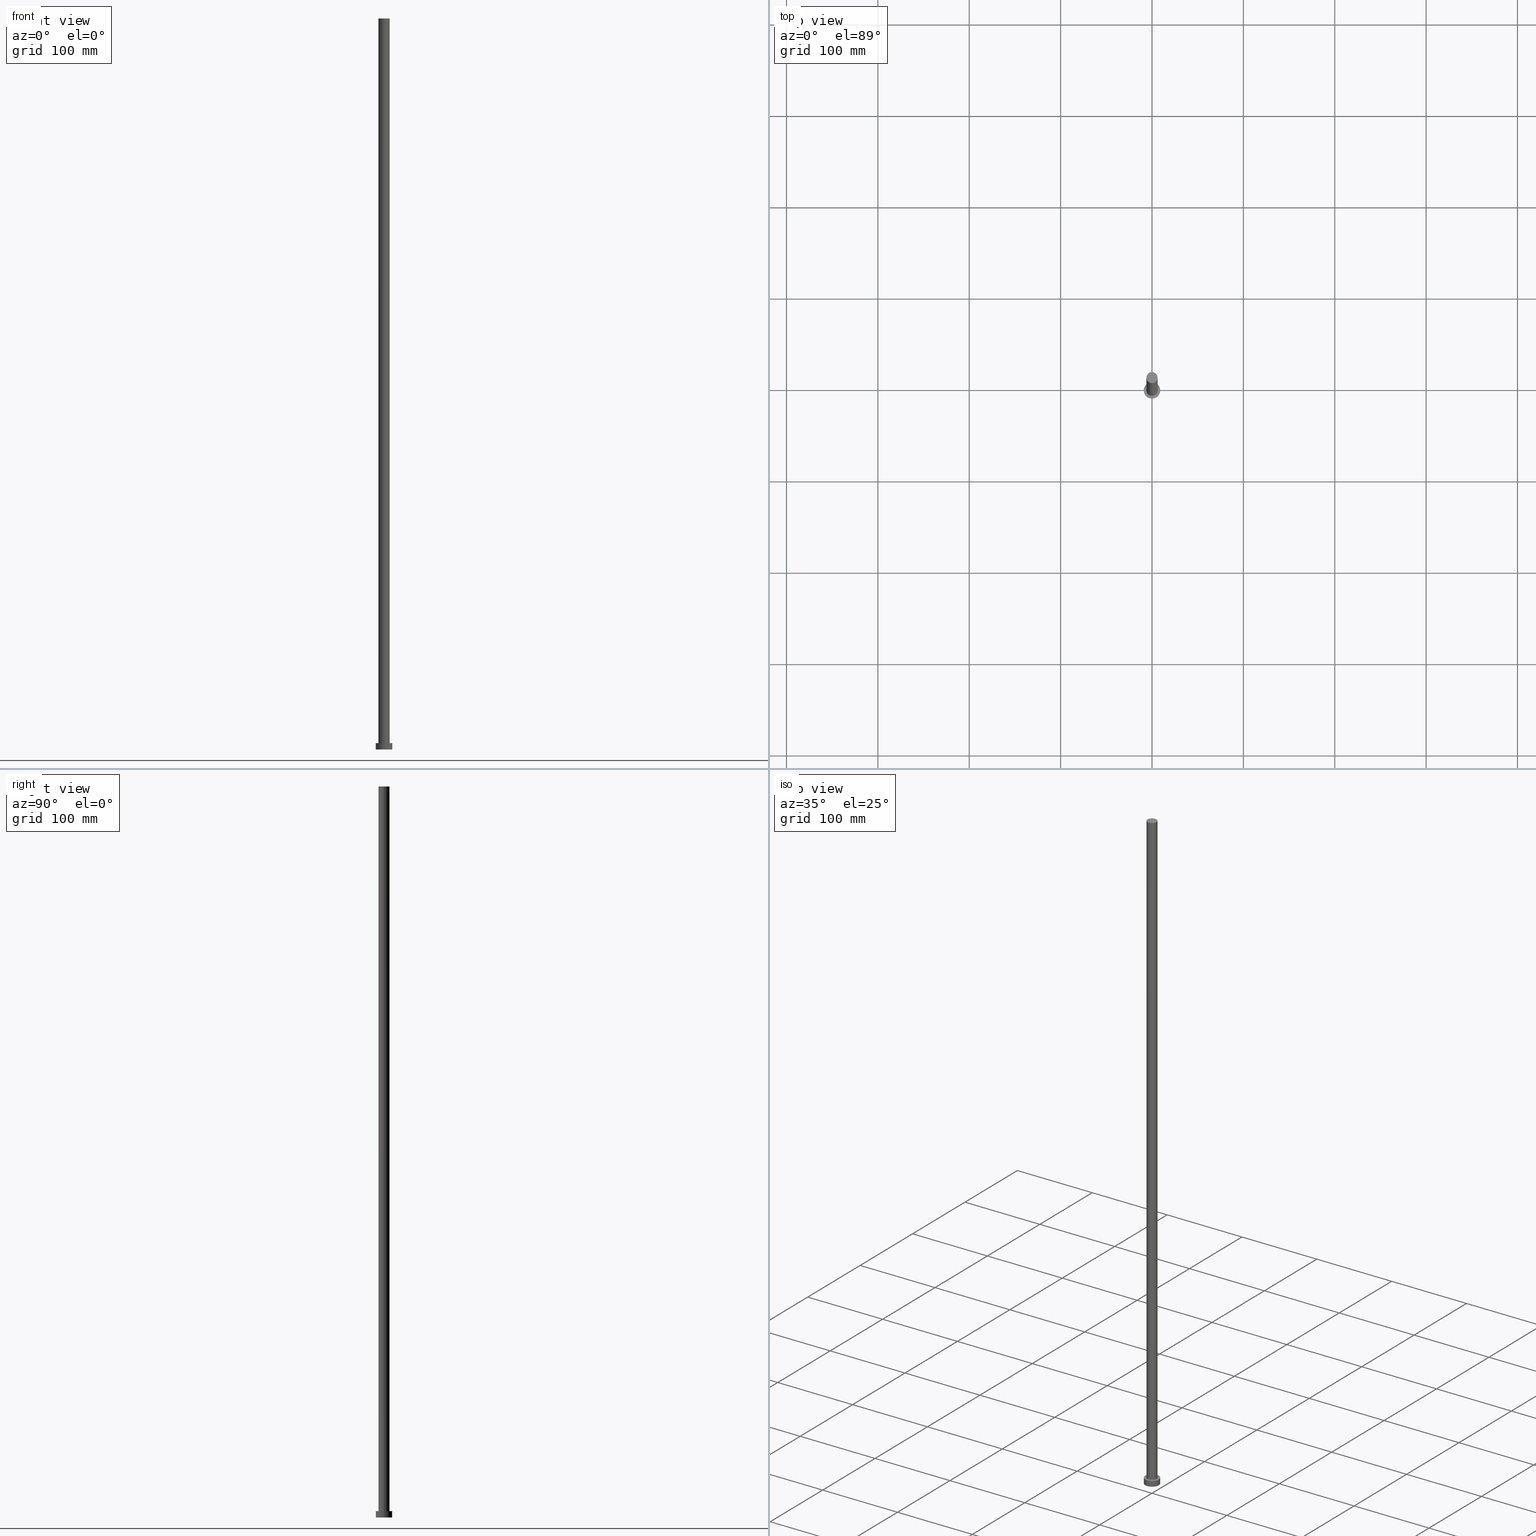
[diagram: canonical four-view strip — front | top / right | iso, engineering-drawing reading convention]
A machine part, canonical four-view strip (front | top / right | iso — engineering-drawing reading convention). The complete STEP part file that produces these views, byte-faithful:
ISO-10303-21;
HEADER;
FILE_DESCRIPTION (( 'STEP AP203' ),
    '1' );
FILE_NAME ('1175.STEP',
    '2023-02-13T10:39:26',
    ( '' ),
    ( '' ),
    'SwSTEP 2.0',
    'SolidWorks 2019',
    '' );
FILE_SCHEMA (( 'CONFIG_CONTROL_DESIGN' ));
ENDSEC;

DATA;
#1 = ORIENTED_EDGE ( 'NONE', *, *, #27, .F. ) ;
#2 = CC_DESIGN_PERSON_AND_ORGANIZATION_ASSIGNMENT ( #42, #147, ( #85 ) ) ;
#3 = COORDINATED_UNIVERSAL_TIME_OFFSET ( 1, 0, .AHEAD. ) ;
#4 = ORIENTED_EDGE ( 'NONE', *, *, #94, .F. ) ;
#5 = DIRECTION ( 'NONE',  ( 0.000000000000000000, 0.000000000000000000, 1.000000000000000000 ) ) ;
#6 = CARTESIAN_POINT ( 'NONE',  ( -9.000000000000000000, 0.000000000000000000, 7.000000000000000000 ) ) ;
#7 = ADVANCED_FACE ( 'NONE', ( #148 ), #86, .T. ) ;
#8 = EDGE_LOOP ( 'NONE', ( #1, #4 ) ) ;
#9 = DATE_AND_TIME ( #192, #182 ) ;
#10 = DIRECTION ( 'NONE',  ( 0.000000000000000000, 0.000000000000000000, 1.000000000000000000 ) ) ;
#11 = LOCAL_TIME ( 11, 39, 26.00000000000000000, #57 ) ;
#12 = PERSON_AND_ORGANIZATION ( #200, #195 ) ;
#13 = LINE ( 'NONE', #39, #214 ) ;
#14 = PERSON_AND_ORGANIZATION_ROLE ( 'creator' ) ;
#15 = DIRECTION ( 'NONE',  ( 1.000000000000000000, 0.000000000000000000, 0.000000000000000000 ) ) ;
#16 = DIRECTION ( 'NONE',  ( 0.000000000000000000, 0.000000000000000000, 1.000000000000000000 ) ) ;
#17 = AXIS2_PLACEMENT_3D ( 'NONE', #248, #156, #78 ) ;
#18 = SHAPE_DEFINITION_REPRESENTATION ( #240, #55 ) ;
#19 = DATE_AND_TIME ( #213, #152 ) ;
#20 = CYLINDRICAL_SURFACE ( 'NONE', #100, 9.000000000000000000 ) ;
#21 = AXIS2_PLACEMENT_3D ( 'NONE', #171, #129, #112 ) ;
#22 = ORIENTED_EDGE ( 'NONE', *, *, #149, .T. ) ;
#23 = CARTESIAN_POINT ( 'NONE',  ( 0.000000000000000000, 0.000000000000000000, 800.0000000000000000 ) ) ;
#24 = DIRECTION ( 'NONE',  ( 0.000000000000000000, 0.000000000000000000, 1.000000000000000000 ) ) ;
#25 = APPLICATION_PROTOCOL_DEFINITION ( 'international standard', 'config_control_design', 1994, #155 ) ;
#26 = DIRECTION ( 'NONE',  ( 1.000000000000000000, 0.000000000000000000, 0.000000000000000000 ) ) ;
#27 = EDGE_CURVE ( 'NONE', #220, #104, #158, .T. ) ;
#28 = DIRECTION ( 'NONE',  ( 1.000000000000000000, 0.000000000000000000, -0.000000000000000000 ) ) ;
#29 = ORIENTED_EDGE ( 'NONE', *, *, #178, .T. ) ;
#30 = PERSON_AND_ORGANIZATION ( #200, #195 ) ;
#31 = VECTOR ( 'NONE', #114, 1000.000000000000000 ) ;
#32 = DIRECTION ( 'NONE',  ( 0.000000000000000000, 0.000000000000000000, 1.000000000000000000 ) ) ;
#33 = PERSON_AND_ORGANIZATION_ROLE ( 'design_supplier' ) ;
#34 = DIRECTION ( 'NONE',  ( -1.000000000000000000, 0.000000000000000000, 0.000000000000000000 ) ) ;
#35 = CARTESIAN_POINT ( 'NONE',  ( -9.000000000000000000, 0.000000000000000000, 7.000000000000000000 ) ) ;
#36 = CARTESIAN_POINT ( 'NONE',  ( -6.099999999999999645, 0.000000000000000000, 7.000000000000000000 ) ) ;
#37 = AXIS2_PLACEMENT_3D ( 'NONE', #23, #108, #199 ) ;
#38 = ADVANCED_FACE ( 'NONE', ( #201, #165 ), #208, .T. ) ;
#39 = CARTESIAN_POINT ( 'NONE',  ( 9.000000000000000000, 1.102182119232617714E-15, 7.000000000000000000 ) ) ;
#40 = APPROVAL_DATE_TIME ( #19, #102 ) ;
#41 = MANIFOLD_SOLID_BREP ( 'P�idat vysunut�m3', #46 ) ;
#42 = PERSON_AND_ORGANIZATION ( #200, #195 ) ;
#43 = ORIENTED_EDGE ( 'NONE', *, *, #113, .F. ) ;
#44 = ORIENTED_EDGE ( 'NONE', *, *, #224, .T. ) ;
#45 = AXIS2_PLACEMENT_3D ( 'NONE', #229, #159, #47 ) ;
#46 = CLOSED_SHELL ( 'NONE', ( #56, #7, #235, #38, #175, #133, #250 ) ) ;
#47 = DIRECTION ( 'NONE',  ( 1.000000000000000000, 0.000000000000000000, 0.000000000000000000 ) ) ;
#48 = ORIENTED_EDGE ( 'NONE', *, *, #197, .F. ) ;
#49 = CYLINDRICAL_SURFACE ( 'NONE', #140, 6.099999999999999645 ) ;
#50 = CC_DESIGN_DATE_AND_TIME_ASSIGNMENT ( #247, #75, ( #123 ) ) ;
#51 = SECURITY_CLASSIFICATION_LEVEL ( 'unclassified' ) ;
#52 = AXIS2_PLACEMENT_3D ( 'NONE', #183, #5, #184 ) ;
#53 = ORIENTED_EDGE ( 'NONE', *, *, #84, .F. ) ;
#54 = ORIENTED_EDGE ( 'NONE', *, *, #84, .T. ) ;
#55 = ADVANCED_BREP_SHAPE_REPRESENTATION ( '1175', ( #41, #137 ), #180 ) ;
#56 = ADVANCED_FACE ( 'NONE', ( #222 ), #49, .T. ) ;
#57 = COORDINATED_UNIVERSAL_TIME_OFFSET ( 1, 0, .AHEAD. ) ;
#58 = PRODUCT_RELATED_PRODUCT_CATEGORY ( 'detail', '', ( #85 ) ) ;
#59 = COORDINATED_UNIVERSAL_TIME_OFFSET ( 1, 0, .AHEAD. ) ;
#60 = DIRECTION ( 'NONE',  ( -0.000000000000000000, -0.000000000000000000, -1.000000000000000000 ) ) ;
#61 = CC_DESIGN_APPROVAL ( #83, ( #111 ) ) ;
#62 = ORIENTED_EDGE ( 'NONE', *, *, #113, .T. ) ;
#63 =( NAMED_UNIT ( * ) SI_UNIT ( $, .STERADIAN. ) SOLID_ANGLE_UNIT ( ) );
#64 = APPROVAL_PERSON_ORGANIZATION ( #143, #83, #186 ) ;
#65 = CARTESIAN_POINT ( 'NONE',  ( 0.000000000000000000, 0.000000000000000000, 0.000000000000000000 ) ) ;
#66 = DESIGN_CONTEXT ( 'detailed design', #82, 'design' ) ;
#67 = ORIENTED_EDGE ( 'NONE', *, *, #139, .F. ) ;
#68 = ORIENTED_EDGE ( 'NONE', *, *, #224, .F. ) ;
#69 = APPROVAL_ROLE ( '' ) ;
#70 = CC_DESIGN_APPROVAL ( #168, ( #209 ) ) ;
#71 = EDGE_LOOP ( 'NONE', ( #205, #150, #44, #101 ) ) ;
#72 = CARTESIAN_POINT ( 'NONE',  ( 0.000000000000000000, 0.000000000000000000, 7.000000000000000000 ) ) ;
#73 = PERSON_AND_ORGANIZATION_ROLE ( 'classification_officer' ) ;
#74 = DIRECTION ( 'NONE',  ( 0.000000000000000000, 0.000000000000000000, 1.000000000000000000 ) ) ;
#75 = DATE_TIME_ROLE ( 'classification_date' ) ;
#76 = LINE ( 'NONE', #118, #31 ) ;
#77 = CYLINDRICAL_SURFACE ( 'NONE', #142, 6.099999999999999645 ) ;
#78 = DIRECTION ( 'NONE',  ( 1.000000000000000000, 0.000000000000000000, 0.000000000000000000 ) ) ;
#79 = CC_DESIGN_SECURITY_CLASSIFICATION ( #123, ( #209 ) ) ;
#80 = EDGE_LOOP ( 'NONE', ( #67, #196, #233, #54 ) ) ;
#81 = CIRCLE ( 'NONE', #217, 9.000000000000000000 ) ;
#82 = APPLICATION_CONTEXT ( 'configuration controlled 3d designs of mechanical parts and assemblies' ) ;
#83 = APPROVAL ( #236, 'NEUR�EN�' ) ;
#84 = EDGE_CURVE ( 'NONE', #124, #185, #251, .T. ) ;
#85 = PRODUCT ( '1175', '1175', '', ( #88 ) ) ;
#86 = CYLINDRICAL_SURFACE ( 'NONE', #21, 9.000000000000000000 ) ;
#87 = LOCAL_TIME ( 11, 39, 26.00000000000000000, #3 ) ;
#88 = MECHANICAL_CONTEXT ( 'NONE', #155, 'mechanical' ) ;
#89 = PERSON_AND_ORGANIZATION ( #200, #195 ) ;
#90 = ORIENTED_EDGE ( 'NONE', *, *, #94, .T. ) ;
#91 = ORIENTED_EDGE ( 'NONE', *, *, #197, .T. ) ;
#92 = VECTOR ( 'NONE', #212, 1000.000000000000000 ) ;
#93 = VERTEX_POINT ( 'NONE', #239 ) ;
#94 = EDGE_CURVE ( 'NONE', #104, #220, #81, .T. ) ;
#95 = DIRECTION ( 'NONE',  ( -0.000000000000000000, -0.000000000000000000, -1.000000000000000000 ) ) ;
#96 = PLANE ( 'NONE',  #238 ) ;
#97 = DIRECTION ( 'NONE',  ( 0.000000000000000000, 0.000000000000000000, 1.000000000000000000 ) ) ;
#98 = CARTESIAN_POINT ( 'NONE',  ( 6.099999999999999645, 7.470345474798854293E-16, 800.0000000000000000 ) ) ;
#99 = PLANE ( 'NONE',  #52 ) ;
#100 = AXIS2_PLACEMENT_3D ( 'NONE', #105, #122, #127 ) ;
#101 = ORIENTED_EDGE ( 'NONE', *, *, #120, .F. ) ;
#102 = APPROVAL ( #204, 'NEUR�EN�' ) ;
#103 = DIRECTION ( 'NONE',  ( 0.000000000000000000, 0.000000000000000000, 1.000000000000000000 ) ) ;
#104 = VERTEX_POINT ( 'NONE', #187 ) ;
#105 = CARTESIAN_POINT ( 'NONE',  ( 0.000000000000000000, 0.000000000000000000, 7.000000000000000000 ) ) ;
#106 = VERTEX_POINT ( 'NONE', #6 ) ;
#107 = DIRECTION ( 'NONE',  ( 0.000000000000000000, 0.000000000000000000, 1.000000000000000000 ) ) ;
#108 = DIRECTION ( 'NONE',  ( 0.000000000000000000, 0.000000000000000000, 1.000000000000000000 ) ) ;
#109 = DIRECTION ( 'NONE',  ( 1.000000000000000000, 0.000000000000000000, 0.000000000000000000 ) ) ;
#110 = VERTEX_POINT ( 'NONE', #98 ) ;
#111 = PRODUCT_DEFINITION ( 'NEZN�M�', '', #209, #66 ) ;
#112 = DIRECTION ( 'NONE',  ( -1.000000000000000000, 0.000000000000000000, 0.000000000000000000 ) ) ;
#113 = EDGE_CURVE ( 'NONE', #93, #104, #13, .T. ) ;
#114 = DIRECTION ( 'NONE',  ( -0.000000000000000000, -0.000000000000000000, -1.000000000000000000 ) ) ;
#115 = CALENDAR_DATE ( 2023, 13, 2 ) ;
#116 = DIRECTION ( 'NONE',  ( 1.000000000000000000, 0.000000000000000000, 0.000000000000000000 ) ) ;
#117 = APPROVAL_PERSON_ORGANIZATION ( #219, #102, #69 ) ;
#118 = CARTESIAN_POINT ( 'NONE',  ( 6.099999999999999645, 7.470345474798854293E-16, 800.0000000000000000 ) ) ;
#119 = CARTESIAN_POINT ( 'NONE',  ( 0.000000000000000000, 0.000000000000000000, 800.0000000000000000 ) ) ;
#120 = EDGE_CURVE ( 'NONE', #151, #124, #249, .T. ) ;
#121 = CC_DESIGN_DATE_AND_TIME_ASSIGNMENT ( #9, #244, ( #111 ) ) ;
#122 = DIRECTION ( 'NONE',  ( -0.000000000000000000, -0.000000000000000000, -1.000000000000000000 ) ) ;
#123 = SECURITY_CLASSIFICATION ( '', '', #51 ) ;
#124 = VERTEX_POINT ( 'NONE', #36 ) ;
#125 = CC_DESIGN_PERSON_AND_ORGANIZATION_ASSIGNMENT ( #245, #73, ( #123 ) ) ;
#126 = LOCAL_TIME ( 11, 39, 26.00000000000000000, #223 ) ;
#127 = DIRECTION ( 'NONE',  ( -1.000000000000000000, 0.000000000000000000, 0.000000000000000000 ) ) ;
#128 =( NAMED_UNIT ( * ) PLANE_ANGLE_UNIT ( ) SI_UNIT ( $, .RADIAN. ) );
#129 = DIRECTION ( 'NONE',  ( -0.000000000000000000, -0.000000000000000000, -1.000000000000000000 ) ) ;
#130 = DIRECTION ( 'NONE',  ( -0.000000000000000000, -0.000000000000000000, -1.000000000000000000 ) ) ;
#131 = AXIS2_PLACEMENT_3D ( 'NONE', #72, #32, #26 ) ;
#132 = CARTESIAN_POINT ( 'NONE',  ( 0.000000000000000000, 0.000000000000000000, 7.000000000000000000 ) ) ;
#133 = ADVANCED_FACE ( 'NONE', ( #215 ), #77, .T. ) ;
#134 = CC_DESIGN_PERSON_AND_ORGANIZATION_ASSIGNMENT ( #30, #33, ( #209 ) ) ;
#135 = ORIENTED_EDGE ( 'NONE', *, *, #231, .T. ) ;
#136 = EDGE_LOOP ( 'NONE', ( #22, #135 ) ) ;
#137 = AXIS2_PLACEMENT_3D ( 'NONE', #164, #103, #237 ) ;
#138 = CARTESIAN_POINT ( 'NONE',  ( 0.000000000000000000, 0.000000000000000000, 800.0000000000000000 ) ) ;
#139 = EDGE_CURVE ( 'NONE', #110, #185, #76, .T. ) ;
#140 = AXIS2_PLACEMENT_3D ( 'NONE', #243, #130, #206 ) ;
#141 = FACE_OUTER_BOUND ( 'NONE', #254, .T. ) ;
#142 = AXIS2_PLACEMENT_3D ( 'NONE', #138, #95, #34 ) ;
#143 = PERSON_AND_ORGANIZATION ( #200, #195 ) ;
#144 = EDGE_CURVE ( 'NONE', #106, #93, #203, .T. ) ;
#145 = DATE_AND_TIME ( #232, #87 ) ;
#146 = ORIENTED_EDGE ( 'NONE', *, *, #144, .T. ) ;
#147 = PERSON_AND_ORGANIZATION_ROLE ( 'design_owner' ) ;
#148 = FACE_OUTER_BOUND ( 'NONE', #202, .T. ) ;
#149 = EDGE_CURVE ( 'NONE', #151, #110, #154, .T. ) ;
#150 = ORIENTED_EDGE ( 'NONE', *, *, #139, .T. ) ;
#151 = VERTEX_POINT ( 'NONE', #230 ) ;
#152 = LOCAL_TIME ( 11, 39, 26.00000000000000000, #59 ) ;
#153 = CARTESIAN_POINT ( 'NONE',  ( 0.000000000000000000, 0.000000000000000000, 0.000000000000000000 ) ) ;
#154 = CIRCLE ( 'NONE', #221, 6.099999999999999645 ) ;
#155 = APPLICATION_CONTEXT ( 'configuration controlled 3d designs of mechanical parts and assemblies' ) ;
#156 = DIRECTION ( 'NONE',  ( 0.000000000000000000, 0.000000000000000000, 1.000000000000000000 ) ) ;
#157 = CARTESIAN_POINT ( 'NONE',  ( 0.000000000000000000, 0.000000000000000000, 7.000000000000000000 ) ) ;
#158 = CIRCLE ( 'NONE', #255, 9.000000000000000000 ) ;
#159 = DIRECTION ( 'NONE',  ( 0.000000000000000000, 0.000000000000000000, 1.000000000000000000 ) ) ;
#160 = APPLICATION_PROTOCOL_DEFINITION ( 'international standard', 'config_control_design', 1994, #82 ) ;
#161 = CIRCLE ( 'NONE', #37, 6.099999999999999645 ) ;
#162 = UNCERTAINTY_MEASURE_WITH_UNIT (LENGTH_MEASURE( 1.000000000000000082E-05 ), #181, 'distance_accuracy_value', 'NONE');
#163 = FACE_OUTER_BOUND ( 'NONE', #136, .T. ) ;
#164 = CARTESIAN_POINT ( 'NONE',  ( 0.000000000000000000, 0.000000000000000000, 0.000000000000000000 ) ) ;
#165 = FACE_OUTER_BOUND ( 'NONE', #190, .T. ) ;
#166 = CIRCLE ( 'NONE', #45, 6.099999999999999645 ) ;
#167 = ORIENTED_EDGE ( 'NONE', *, *, #144, .F. ) ;
#168 = APPROVAL ( #225, 'NEUR�EN�' ) ;
#169 = ORIENTED_EDGE ( 'NONE', *, *, #178, .F. ) ;
#170 = APPROVAL_ROLE ( '' ) ;
#171 = CARTESIAN_POINT ( 'NONE',  ( 0.000000000000000000, 0.000000000000000000, 7.000000000000000000 ) ) ;
#172 = AXIS2_PLACEMENT_3D ( 'NONE', #157, #16, #116 ) ;
#173 = ORIENTED_EDGE ( 'NONE', *, *, #27, .T. ) ;
#174 = LINE ( 'NONE', #35, #198 ) ;
#175 = ADVANCED_FACE ( 'NONE', ( #226 ), #96, .F. ) ;
#176 = CIRCLE ( 'NONE', #17, 9.000000000000000000 ) ;
#177 = DIRECTION ( 'NONE',  ( -0.000000000000000000, -0.000000000000000000, -1.000000000000000000 ) ) ;
#178 = EDGE_CURVE ( 'NONE', #106, #220, #174, .T. ) ;
#179 = CARTESIAN_POINT ( 'NONE',  ( -9.000000000000000000, 0.000000000000000000, 0.000000000000000000 ) ) ;
#180 =( GEOMETRIC_REPRESENTATION_CONTEXT ( 3 ) GLOBAL_UNCERTAINTY_ASSIGNED_CONTEXT ( ( #162 ) ) GLOBAL_UNIT_ASSIGNED_CONTEXT ( ( #181, #128, #63 ) ) REPRESENTATION_CONTEXT ( 'NONE', 'WORKASPACE' ) );
#181 =( LENGTH_UNIT ( ) NAMED_UNIT ( * ) SI_UNIT ( .MILLI., .METRE. ) );
#182 = LOCAL_TIME ( 11, 39, 26.00000000000000000, #188 ) ;
#183 = CARTESIAN_POINT ( 'NONE',  ( 0.000000000000000000, 0.000000000000000000, 800.0000000000000000 ) ) ;
#184 = DIRECTION ( 'NONE',  ( 1.000000000000000000, 0.000000000000000000, -0.000000000000000000 ) ) ;
#185 = VERTEX_POINT ( 'NONE', #193 ) ;
#186 = APPROVAL_ROLE ( '' ) ;
#187 = CARTESIAN_POINT ( 'NONE',  ( 9.000000000000000000, 1.102182119232617714E-15, 0.000000000000000000 ) ) ;
#188 = COORDINATED_UNIVERSAL_TIME_OFFSET ( 1, 0, .AHEAD. ) ;
#189 = DIRECTION ( 'NONE',  ( 1.000000000000000000, 0.000000000000000000, 0.000000000000000000 ) ) ;
#190 = EDGE_LOOP ( 'NONE', ( #146, #91 ) ) ;
#191 = PERSON_AND_ORGANIZATION_ROLE ( 'creator' ) ;
#192 = CALENDAR_DATE ( 2023, 13, 2 ) ;
#193 = CARTESIAN_POINT ( 'NONE',  ( 6.099999999999999645, 7.470345474798854293E-16, 7.000000000000000000 ) ) ;
#194 = CC_DESIGN_PERSON_AND_ORGANIZATION_ASSIGNMENT ( #89, #191, ( #111 ) ) ;
#195 = ORGANIZATION ( 'NEUR�EN�', 'NEUR�EN�', '' ) ;
#196 = ORIENTED_EDGE ( 'NONE', *, *, #149, .F. ) ;
#197 = EDGE_CURVE ( 'NONE', #93, #106, #176, .T. ) ;
#198 = VECTOR ( 'NONE', #60, 1000.000000000000000 ) ;
#199 = DIRECTION ( 'NONE',  ( 1.000000000000000000, 0.000000000000000000, 0.000000000000000000 ) ) ;
#200 = PERSON ( 'NEUR�EN�', 'NEUR�EN�', 'NEUR�EN�', ('NEUR�EN�'), ('NEUR�EN�'), ('NEUR�EN�') ) ;
#201 = FACE_BOUND ( 'NONE', #252, .T. ) ;
#202 = EDGE_LOOP ( 'NONE', ( #48, #62, #90, #169 ) ) ;
#203 = CIRCLE ( 'NONE', #172, 9.000000000000000000 ) ;
#204 = APPROVAL_STATUS ( 'not_yet_approved' ) ;
#205 = ORIENTED_EDGE ( 'NONE', *, *, #231, .F. ) ;
#206 = DIRECTION ( 'NONE',  ( -1.000000000000000000, 0.000000000000000000, 0.000000000000000000 ) ) ;
#207 = CALENDAR_DATE ( 2023, 13, 2 ) ;
#208 = PLANE ( 'NONE',  #234 ) ;
#209 = PRODUCT_DEFINITION_FORMATION_WITH_SPECIFIED_SOURCE ( 'LIBOVOLN�', '', #85, .NOT_KNOWN. ) ;
#210 = DATE_AND_TIME ( #207, #126 ) ;
#211 = DIRECTION ( 'NONE',  ( 1.000000000000000000, 0.000000000000000000, -0.000000000000000000 ) ) ;
#212 = DIRECTION ( 'NONE',  ( -0.000000000000000000, -0.000000000000000000, -1.000000000000000000 ) ) ;
#213 = CALENDAR_DATE ( 2023, 13, 2 ) ;
#214 = VECTOR ( 'NONE', #177, 1000.000000000000000 ) ;
#215 = FACE_OUTER_BOUND ( 'NONE', #80, .T. ) ;
#216 = APPROVAL_DATE_TIME ( #145, #83 ) ;
#217 = AXIS2_PLACEMENT_3D ( 'NONE', #65, #107, #109 ) ;
#218 = CARTESIAN_POINT ( 'NONE',  ( 0.000000000000000000, 0.000000000000000000, 0.000000000000000000 ) ) ;
#219 = PERSON_AND_ORGANIZATION ( #200, #195 ) ;
#220 = VERTEX_POINT ( 'NONE', #179 ) ;
#221 = AXIS2_PLACEMENT_3D ( 'NONE', #119, #97, #15 ) ;
#222 = FACE_OUTER_BOUND ( 'NONE', #71, .T. ) ;
#223 = COORDINATED_UNIVERSAL_TIME_OFFSET ( 1, 0, .AHEAD. ) ;
#224 = EDGE_CURVE ( 'NONE', #185, #124, #166, .T. ) ;
#225 = APPROVAL_STATUS ( 'not_yet_approved' ) ;
#226 = FACE_OUTER_BOUND ( 'NONE', #8, .T. ) ;
#227 = APPROVAL_PERSON_ORGANIZATION ( #12, #168, #170 ) ;
#228 = APPROVAL_DATE_TIME ( #210, #168 ) ;
#229 = CARTESIAN_POINT ( 'NONE',  ( 0.000000000000000000, 0.000000000000000000, 7.000000000000000000 ) ) ;
#230 = CARTESIAN_POINT ( 'NONE',  ( -6.099999999999999645, 0.000000000000000000, 800.0000000000000000 ) ) ;
#231 = EDGE_CURVE ( 'NONE', #110, #151, #161, .T. ) ;
#232 = CALENDAR_DATE ( 2023, 13, 2 ) ;
#233 = ORIENTED_EDGE ( 'NONE', *, *, #120, .T. ) ;
#234 = AXIS2_PLACEMENT_3D ( 'NONE', #132, #24, #28 ) ;
#235 = ADVANCED_FACE ( 'NONE', ( #141 ), #20, .T. ) ;
#236 = APPROVAL_STATUS ( 'not_yet_approved' ) ;
#237 = DIRECTION ( 'NONE',  ( 1.000000000000000000, 0.000000000000000000, 0.000000000000000000 ) ) ;
#238 = AXIS2_PLACEMENT_3D ( 'NONE', #153, #74, #211 ) ;
#239 = CARTESIAN_POINT ( 'NONE',  ( 9.000000000000000000, 1.102182119232617714E-15, 7.000000000000000000 ) ) ;
#240 = PRODUCT_DEFINITION_SHAPE ( 'NONE', 'NONE',  #111 ) ;
#241 = PERSON_AND_ORGANIZATION ( #200, #195 ) ;
#242 = CC_DESIGN_APPROVAL ( #102, ( #123 ) ) ;
#243 = CARTESIAN_POINT ( 'NONE',  ( 0.000000000000000000, 0.000000000000000000, 800.0000000000000000 ) ) ;
#244 = DATE_TIME_ROLE ( 'creation_date' ) ;
#245 = PERSON_AND_ORGANIZATION ( #200, #195 ) ;
#246 = CARTESIAN_POINT ( 'NONE',  ( -6.099999999999999645, 0.000000000000000000, 800.0000000000000000 ) ) ;
#247 = DATE_AND_TIME ( #115, #11 ) ;
#248 = CARTESIAN_POINT ( 'NONE',  ( 0.000000000000000000, 0.000000000000000000, 7.000000000000000000 ) ) ;
#249 = LINE ( 'NONE', #246, #92 ) ;
#250 = ADVANCED_FACE ( 'NONE', ( #163 ), #99, .T. ) ;
#251 = CIRCLE ( 'NONE', #131, 6.099999999999999645 ) ;
#252 = EDGE_LOOP ( 'NONE', ( #53, #68 ) ) ;
#253 = CC_DESIGN_PERSON_AND_ORGANIZATION_ASSIGNMENT ( #241, #14, ( #209 ) ) ;
#254 = EDGE_LOOP ( 'NONE', ( #43, #167, #29, #173 ) ) ;
#255 = AXIS2_PLACEMENT_3D ( 'NONE', #218, #10, #189 ) ;
ENDSEC;
END-ISO-10303-21;
